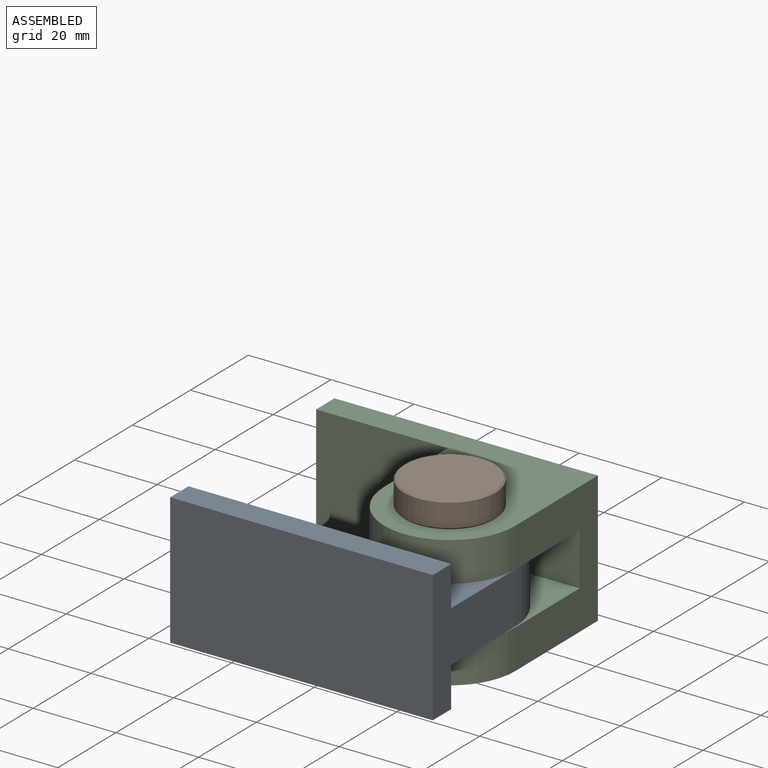
[diagram: assembled view]
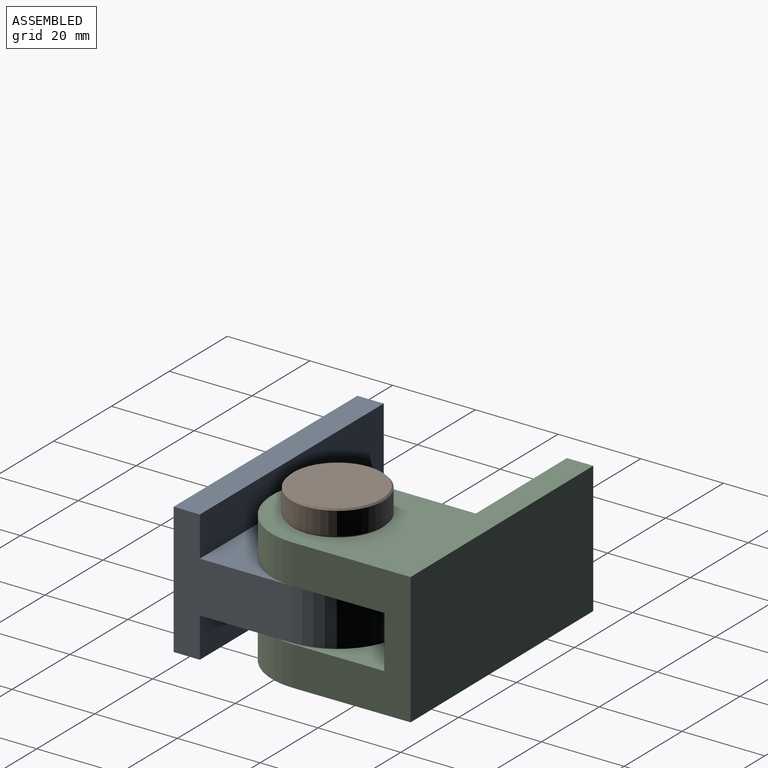
[diagram: assembled view, second angle]
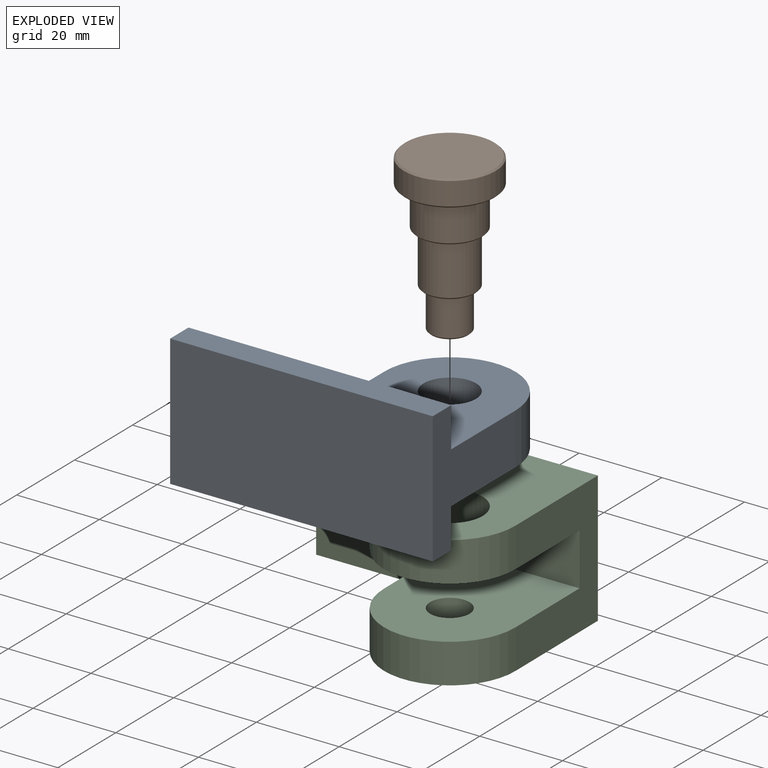
[diagram: exploded view]
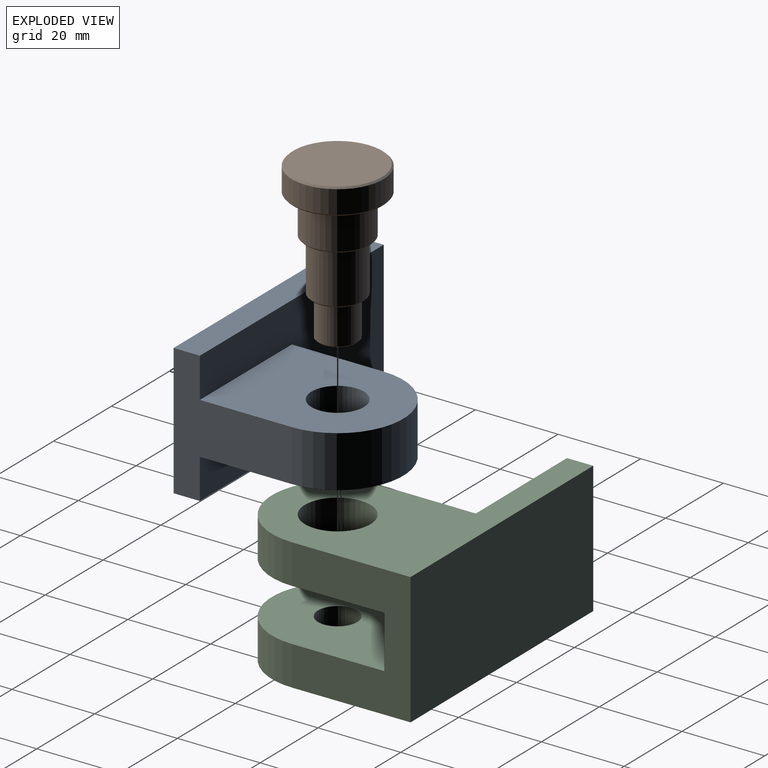
[diagram: exploded view, second angle]
ASSEMBLY  parts=3 mates=2
PART A: 11 faces, bbox 63.5x44.5x31.8 mm
  f0: plane 63.5x31.75mm, normal (0,1,0), area 1621mm2, adj f1,f2,f3,f4,f6,f7,f8
  f1: plane 63.5x6.35mm, normal (0,0,-1), area 403.2mm2, adj f0,f2,f4,f5
  f2: plane 31.75x28.58mm, normal (1,0,0), area 478.2mm2, adj f0,f1,f3,f5,f6,f7,f9
  f3: plane 63.5x6.35mm, normal (0,0,1), area 403.2mm2, adj f0,f2,f4,f5
  f4: plane 31.75x6.35mm, normal (-1,0,0), area 201.6mm2, adj f0,f1,f3,f5
  f5: plane 63.5x31.75mm, normal (0,-1,0), area 2016.1mm2, adj f1,f2,f3,f4
  f6: plane 38.1x31.75mm, normal (0,0,-1), area 974.8mm2, adj f0,f2,f8,f9,f10
  f7: plane 38.1x31.75mm, normal (0,0,1), area 974.8mm2, adj f0,f2,f8,f9,f10
  f8: plane 22.23x12.45mm, normal (-1,0,0), area 276.6mm2, adj f0,f6,f7,f9
  f9: cylinder r=15.88mm len=31.75mm, axis (0,0,1), area 620.7mm2, adj f2,f6,f7,f8
  f10: cylinder r=6.35mm len=12.7mm, axis (0,0,-1), area 496.6mm2, adj f6,f7
PART B: 16 faces, bbox 22.2x22.2x38.1 mm
  f0: plane 21.46x21.46mm, normal (0,0,-1), area 361.8mm2, adj f11
  f1: cylinder r=11.11mm len=22.23mm, axis (0,0,1), area 390.2mm2, adj f11,f12
  f2: plane 21.46x21.46mm, normal (0,0,1), area 163.9mm2, adj f3,f12
  f3: cylinder r=7.94mm len=15.88mm, axis (0,0,1), area 456mm2, adj f2,f13
  f4: plane 15.11x15.11mm, normal (0,0,1), area 52.7mm2, adj f5,f13
  f5: cylinder r=6.35mm len=12.7mm, axis (0,0,1), area 491.5mm2, adj f4,f14
  f6: plane 11.94x11.94mm, normal (0,0,1), area 40.7mm2, adj f7,f14
  f7: cylinder r=4.76mm len=9.53mm, axis (0,0,1), area 273.6mm2, adj f6,f15
  f8: plane 8.76x8.76mm, normal (0,0,1), area 39.8mm2, adj f10,f15
  f9: cone r=0mm half-angle=59deg, axis (0,0,1), area 23.9mm2, adj f10
  f10: cylinder r=2.55mm len=16.51mm, axis (0,0,1), area 264.8mm2, adj f8,f9
  f11: cone r=11.11mm half-angle=45deg, axis (0,0,1), area 37mm2, adj f0,f1
  f12: cone r=10.73mm half-angle=45deg, axis (0,0,-1), area 37mm2, adj f1,f2
  f13: cone r=7.56mm half-angle=45deg, axis (0,0,-1), area 26.2mm2, adj f3,f4
  f14: cone r=5.97mm half-angle=45deg, axis (0,0,-1), area 20.9mm2, adj f5,f6
  f15: cone r=4.38mm half-angle=45deg, axis (0,0,-1), area 15.5mm2, adj f7,f8
PART C: 14 faces, bbox 63.5x44.5x31.8 mm
  f0: plane 63.5x31.75mm, normal (0,-1,0), area 1411.3mm2, adj f1,f2,f3,f4,f6,f7,f8,f9
  f1: plane 31.75x28.58mm, normal (1,0,0), area 625mm2, adj f0,f2,f4,f5,f6,f9,f10,f11
  f2: plane 63.5x44.45mm, normal (0,0,1), area 1306.8mm2, adj f0,f1,f3,f5,f7,f11,f13
  f3: plane 31.75x6.35mm, normal (-1,0,0), area 201.6mm2, adj f0,f2,f4,f5
  f4: plane 63.5x44.45mm, normal (0,0,-1), area 1433.5mm2, adj f0,f1,f3,f5,f8,f10,f12
  f5: plane 63.5x31.75mm, normal (0,1,0), area 2016.1mm2, adj f1,f2,f3,f4
  f6: plane 38.1x31.75mm, normal (0,0,-1), area 903.6mm2, adj f0,f1,f7,f11,f13
  f7: plane 22.23x9.53mm, normal (-1,0,0), area 211.7mm2, adj f0,f2,f6,f11
  f8: plane 22.23x9.53mm, normal (-1,0,0), area 211.7mm2, adj f0,f4,f9,f10
  f9: plane 38.1x31.75mm, normal (0,0,1), area 1030.3mm2, adj f0,f1,f8,f10,f12
  f10: cylinder r=15.88mm len=31.75mm, axis (0,0,1), area 475mm2, adj f1,f4,f8,f9
  f11: cylinder r=15.88mm len=31.75mm, axis (0,0,1), area 475mm2, adj f1,f2,f6,f7
  f12: cylinder r=4.76mm len=9.53mm, axis (0,0,1), area 285mm2, adj f4,f9
  f13: cylinder r=7.94mm len=15.88mm, axis (0,0,1), area 475mm2, adj f2,f6
PLACE A t=(9.99,-55.59,-12.13)mm
PLACE B rot(axis=(1,0,0),180deg) t=(-5.88,-33.37,25.84)mm
PLACE C rot(axis=(0,0,1),0.3deg) t=(9.89,-11.07,-12.26)mm
MATE revolute B.f1 <-> C.f10  axis (0,0,-1) through (-5.88,-33.37,19.49)mm
MATE revolute A.f9 <-> C.f10  axis (0,0,1) through (-5.88,-33.37,9.96)mm
